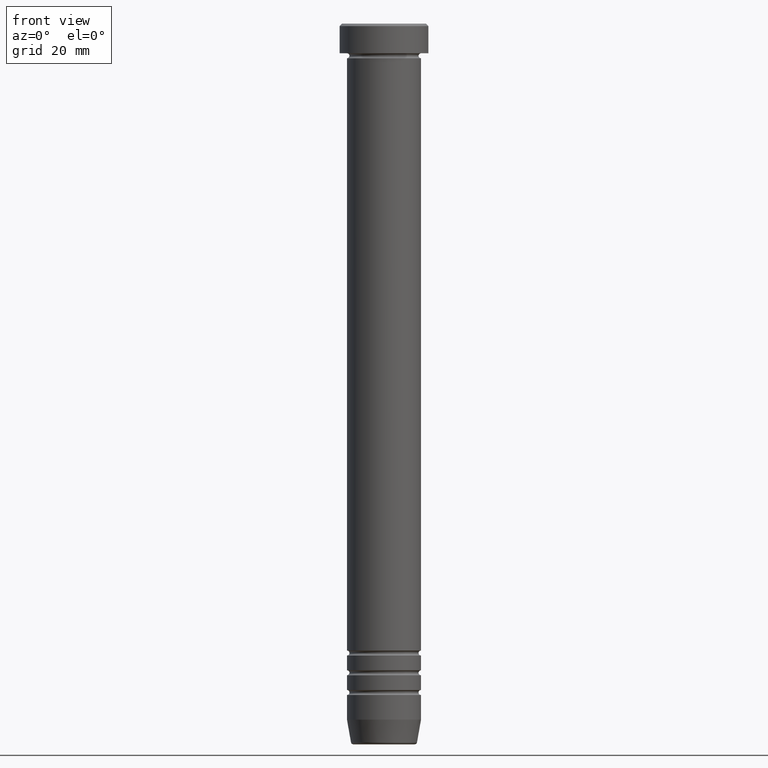
[diagram: clean part render]
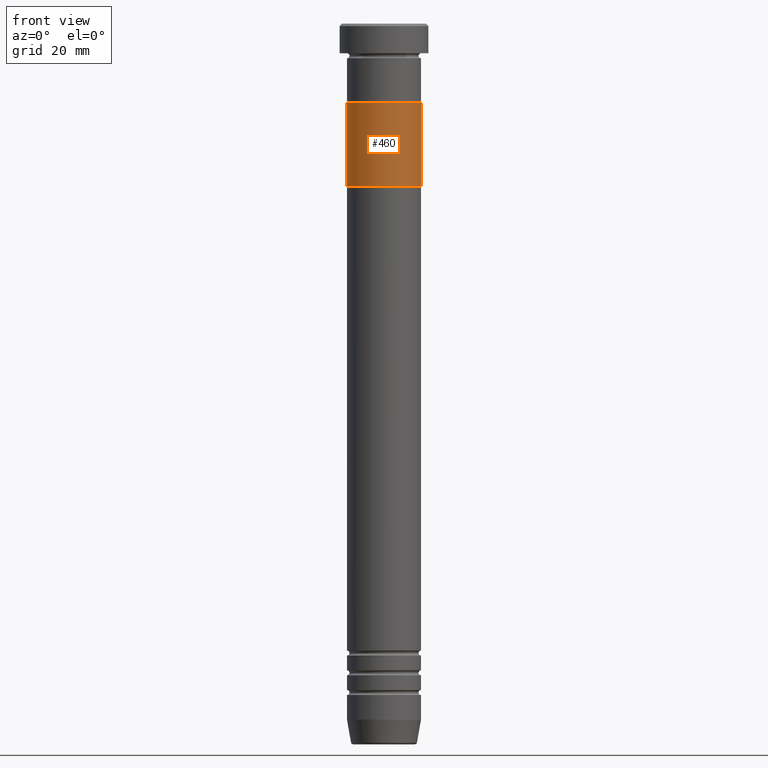
[diagram: same view with one face highlighted and labeled with its STEP entity id]
A machine part, front view. The second image highlights one B-rep face of the part: STEP entity #460.
In plain terms, the highlighted cylindrical surface (partial cylindrical patch) has radius 7.5 mm, axis along (-0, -0, 1).
Its self-contained STEP definition (entity closure, byte-faithful):
#10 = VECTOR ( 'NONE', #381, 1000.000000000000000 ) ;
#12 = DIRECTION ( 'NONE',  ( 1.000000000000000000, 0.000000000000000000, 0.000000000000000000 ) ) ;
#17 = EDGE_CURVE ( 'NONE', #909, #741, #410, .T. ) ;
#50 = DIRECTION ( 'NONE',  ( -1.000000000000000000, 0.000000000000000000, 0.000000000000000000 ) ) ;
#99 = CARTESIAN_POINT ( 'NONE',  ( 0.000000000000000000, 0.000000000000000000, -33.00000000000000000 ) ) ;
#134 = CARTESIAN_POINT ( 'NONE',  ( -7.500000000000000000, 9.184850993605147944E-16, -33.00000000000000000 ) ) ;
#161 = CIRCLE ( 'NONE', #176, 7.500000000000000000 ) ;
#176 = AXIS2_PLACEMENT_3D ( 'NONE', #1030, #843, #50 ) ;
#181 = ORIENTED_EDGE ( 'NONE', *, *, #734, .T. ) ;
#205 = ORIENTED_EDGE ( 'NONE', *, *, #17, .F. ) ;
#318 = DIRECTION ( 'NONE',  ( 0.000000000000000000, 0.000000000000000000, -1.000000000000000000 ) ) ;
#345 = EDGE_LOOP ( 'NONE', ( #648, #205, #181, #1008 ) ) ;
#369 = CARTESIAN_POINT ( 'NONE',  ( -7.500000000000000000, 9.184850993605147944E-16, -16.00000000000000000 ) ) ;
#381 = DIRECTION ( 'NONE',  ( -0.000000000000000000, -0.000000000000000000, 1.000000000000000000 ) ) ;
#410 = CIRCLE ( 'NONE', #705, 7.500000000000000000 ) ;
#445 = CARTESIAN_POINT ( 'NONE',  ( -7.500000000000000000, 9.184850993605147944E-16, -33.00000000000000000 ) ) ;
#460 = ADVANCED_FACE ( 'NONE', ( #523 ), #887, .T. ) ;
#495 = VERTEX_POINT ( 'NONE', #369 ) ;
#498 = EDGE_CURVE ( 'NONE', #741, #495, #634, .T. ) ;
#500 = AXIS2_PLACEMENT_3D ( 'NONE', #99, #799, #12 ) ;
#523 = FACE_OUTER_BOUND ( 'NONE', #345, .T. ) ;
#634 = LINE ( 'NONE', #445, #800 ) ;
#648 = ORIENTED_EDGE ( 'NONE', *, *, #498, .F. ) ;
#695 = CARTESIAN_POINT ( 'NONE',  ( 7.500000000000000000, 0.000000000000000000, -33.00000000000000000 ) ) ;
#705 = AXIS2_PLACEMENT_3D ( 'NONE', #785, #318, #945 ) ;
#734 = EDGE_CURVE ( 'NONE', #909, #869, #1121, .T. ) ;
#741 = VERTEX_POINT ( 'NONE', #134 ) ;
#755 = CARTESIAN_POINT ( 'NONE',  ( 7.500000000000000000, 0.000000000000000000, -33.00000000000000000 ) ) ;
#785 = CARTESIAN_POINT ( 'NONE',  ( 0.000000000000000000, 0.000000000000000000, -33.00000000000000000 ) ) ;
#792 = EDGE_CURVE ( 'NONE', #869, #495, #161, .T. ) ;
#799 = DIRECTION ( 'NONE',  ( -0.000000000000000000, -0.000000000000000000, 1.000000000000000000 ) ) ;
#800 = VECTOR ( 'NONE', #904, 1000.000000000000000 ) ;
#843 = DIRECTION ( 'NONE',  ( 0.000000000000000000, 0.000000000000000000, -1.000000000000000000 ) ) ;
#869 = VERTEX_POINT ( 'NONE', #983 ) ;
#887 = CYLINDRICAL_SURFACE ( 'NONE', #500, 7.500000000000000000 ) ;
#904 = DIRECTION ( 'NONE',  ( -0.000000000000000000, -0.000000000000000000, 1.000000000000000000 ) ) ;
#909 = VERTEX_POINT ( 'NONE', #695 ) ;
#945 = DIRECTION ( 'NONE',  ( -1.000000000000000000, 0.000000000000000000, 0.000000000000000000 ) ) ;
#983 = CARTESIAN_POINT ( 'NONE',  ( 7.500000000000000000, 0.000000000000000000, -16.00000000000000000 ) ) ;
#1008 = ORIENTED_EDGE ( 'NONE', *, *, #792, .T. ) ;
#1030 = CARTESIAN_POINT ( 'NONE',  ( 0.000000000000000000, 0.000000000000000000, -16.00000000000000000 ) ) ;
#1121 = LINE ( 'NONE', #755, #10 ) ;